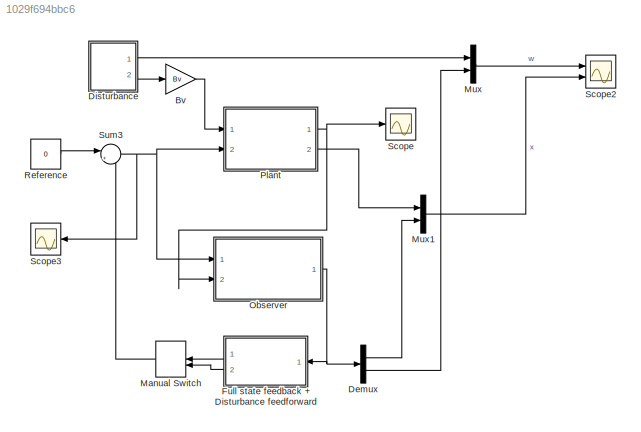
MODEL slx_1029f694bbc6
KIND model
CONFIG AbsTol = auto
CONFIG EnableMultiTasking = on
CONFIG FixedStep = 0.05
CONFIG MaxStep = auto
CONFIG MinStep = auto
CONFIG RelTol = 1e-3
CONFIG SampleTimeConstraint = Unconstrained
CONFIG Solver = ode4
CONFIG SolverName = ode4
CONFIG StartTime = 0.0
CONFIG StopTime = 50
BLOCK [Gain] Bv
  Gain = Bv
  Multiplication = Matrix(K*u) (u vector)
  OutDataTypeStr = Inherit: Inherit via internal rule
  ParamDataTypeStr = Inherit: Inherit via internal rule
  SaturateOnIntegerOverflow = off
BLOCK [Demux] Demux
  DisplayOption = bar
  Outputs = 2
  Ports = [1, 2]
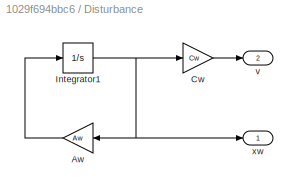
BLOCK [SubSystem] Disturbance
  Ports = [0, 2]
  RequestExecContextInheritance = off
  Variant = off
BLOCK [Gain] Disturbance/Aw
  Gain = Aw
  Multiplication = Matrix(K*u) (u vector)
  OutDataTypeStr = Inherit: Inherit via internal rule
  ParamDataTypeStr = Inherit: Inherit via internal rule
  SaturateOnIntegerOverflow = off
BLOCK [Gain] Disturbance/Cw
  Gain = Cw
  Multiplication = Matrix(K*u) (u vector)
  OutDataTypeStr = Inherit: Inherit via internal rule
  ParamDataTypeStr = Inherit: Inherit via internal rule
  SaturateOnIntegerOverflow = off
BLOCK [Integrator] Disturbance/Integrator1
  InitialCondition = w0
  Ports = [1, 1]
BLOCK [Outport] Disturbance/v
  IconDisplay = Port number
  Port = 2
BLOCK [Outport] Disturbance/xw
  IconDisplay = Port number
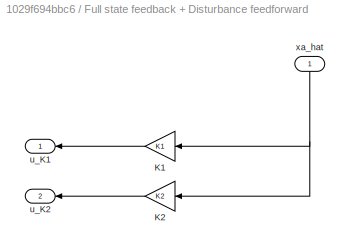
BLOCK [SubSystem] Full state feedback + Disturbance feedforward
  Ports = [1, 2]
  RequestExecContextInheritance = off
  Variant = off
BLOCK [Gain] Full state feedback + Disturbance feedforward/K1
  Gain = K1
  Multiplication = Matrix(K*u) (u vector)
  OutDataTypeStr = Inherit: Inherit via internal rule
  ParamDataTypeStr = Inherit: Inherit via internal rule
  SaturateOnIntegerOverflow = off
BLOCK [Gain] Full state feedback + Disturbance feedforward/K2
  Gain = K2
  Multiplication = Matrix(K*u) (u vector)
  OutDataTypeStr = Inherit: Inherit via internal rule
  ParamDataTypeStr = Inherit: Inherit via internal rule
  SaturateOnIntegerOverflow = off
BLOCK [Outport] Full state feedback + Disturbance feedforward/u_K1
  IconDisplay = Port number
BLOCK [Outport] Full state feedback + Disturbance feedforward/u_K2
  IconDisplay = Port number
  Port = 2
BLOCK [Inport] Full state feedback + Disturbance feedforward/xa_hat
  IconDisplay = Port number
BLOCK [ManualSwitch] Manual Switch
BLOCK [Mux] Mux
  DisplayOption = bar
  Inputs = 2
  Ports = [2, 1]
BLOCK [Mux] Mux1
  DisplayOption = bar
  Inputs = 2
  Ports = [2, 1]
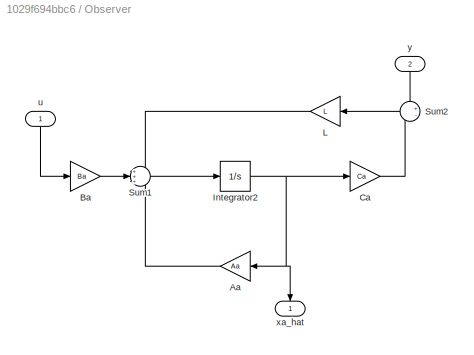
BLOCK [SubSystem] Observer
  Ports = [2, 1]
  RequestExecContextInheritance = off
  Variant = off
BLOCK [Gain] Observer/Aa
  Gain = Aa
  Multiplication = Matrix(K*u) (u vector)
  OutDataTypeStr = Inherit: Inherit via internal rule
  ParamDataTypeStr = Inherit: Inherit via internal rule
  SaturateOnIntegerOverflow = off
BLOCK [Gain] Observer/Ba
  Gain = Ba
  Multiplication = Matrix(K*u) (u vector)
  OutDataTypeStr = Inherit: Inherit via internal rule
  ParamDataTypeStr = Inherit: Inherit via internal rule
  SaturateOnIntegerOverflow = off
BLOCK [Gain] Observer/Ca
  Gain = Ca
  Multiplication = Matrix(K*u) (u vector)
  OutDataTypeStr = Inherit: Inherit via internal rule
  ParamDataTypeStr = Inherit: Inherit via internal rule
  SaturateOnIntegerOverflow = off
BLOCK [Integrator] Observer/Integrator2
  InitialCondition = xhat0
  Ports = [1, 1]
BLOCK [Gain] Observer/L
  Gain = L
  Multiplication = Matrix(K*u) (u vector)
  OutDataTypeStr = Inherit: Inherit via internal rule
  ParamDataTypeStr = Inherit: Inherit via internal rule
  SaturateOnIntegerOverflow = off
BLOCK [Sum] Observer/Sum1
  IconShape = round
  InputSameDT = off
  Inputs = +++
  OutDataTypeStr = Inherit: Inherit via internal rule
  Ports = [3, 1]
  SaturateOnIntegerOverflow = off
BLOCK [Sum] Observer/Sum2
  IconShape = round
  InputSameDT = off
  Inputs = +-
  OutDataTypeStr = Inherit: Inherit via internal rule
  Ports = [2, 1]
  SaturateOnIntegerOverflow = off
BLOCK [Inport] Observer/u
  IconDisplay = Port number
BLOCK [Outport] Observer/xa_hat
  IconDisplay = Port number
BLOCK [Inport] Observer/y
  IconDisplay = Port number
  Port = 2
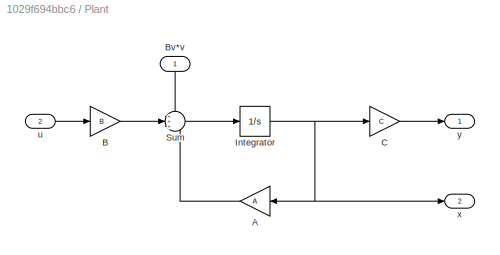
BLOCK [SubSystem] Plant
  Ports = [2, 2]
  RequestExecContextInheritance = off
  Variant = off
BLOCK [Gain] Plant/A
  Gain = A
  Multiplication = Matrix(K*u) (u vector)
  OutDataTypeStr = Inherit: Inherit via internal rule
  ParamDataTypeStr = Inherit: Inherit via internal rule
  SaturateOnIntegerOverflow = off
BLOCK [Gain] Plant/B
  Gain = B
  Multiplication = Matrix(K*u) (u vector)
  OutDataTypeStr = Inherit: Inherit via internal rule
  ParamDataTypeStr = Inherit: Inherit via internal rule
  SaturateOnIntegerOverflow = off
BLOCK [Inport] Plant/Bv*v
  IconDisplay = Port number
BLOCK [Gain] Plant/C
  Gain = C
  Multiplication = Matrix(K*u) (u vector)
  OutDataTypeStr = Inherit: Inherit via internal rule
  ParamDataTypeStr = Inherit: Inherit via internal rule
  SaturateOnIntegerOverflow = off
BLOCK [Integrator] Plant/Integrator
  InitialCondition = x0
  Ports = [1, 1]
BLOCK [Sum] Plant/Sum
  IconShape = round
  InputSameDT = off
  Inputs = +++
  OutDataTypeStr = Inherit: Inherit via internal rule
  Ports = [3, 1]
  SaturateOnIntegerOverflow = off
BLOCK [Inport] Plant/u
  IconDisplay = Port number
  Port = 2
BLOCK [Outport] Plant/x
  IconDisplay = Port number
  Port = 2
BLOCK [Outport] Plant/y
  IconDisplay = Port number
BLOCK [Constant] Reference
  Value = 0
BLOCK [Scope] Scope
  NumInputPorts = 1
  Ports = [1]
  ScopeSpecificationString = Simulink.scopes.TimeScopeBlockCfg('CurrentConfiguration', extmgr.ConfigurationSet(extmgr.Configuration('Core','General UI',true),extmgr.Configuration('Core','Source UI',true),extmgr.Configuration('Sources','WiredSimulink',true,'DataLoggingSaveFormat','StructureWithTime','DataLoggingDecimation','1','DataLoggingDecimateData',true),extmgr.Configuration('Visuals','Time Domain',true,'SerializedDisplays...<+1607ch>
BLOCK [Scope] Scope2
  NumInputPorts = 2
  Ports = [2]
  ScopeSpecificationString = Simulink.scopes.TimeScopeBlockCfg('CurrentConfiguration', extmgr.ConfigurationSet(extmgr.Configuration('Core','General UI',true,'FigureColor',[0.501960784313725 0.501960784313725 0.501960784313725]),extmgr.Configuration('Core','Source UI',true),extmgr.Configuration('Sources','WiredSimulink',true,'DataLoggingVariableName','ScopeData2','DataLoggingSaveFormat','StructureWithTime','DataLoggingDecimati...<+3851ch>
BLOCK [Scope] Scope3
  NumInputPorts = 1
  Ports = [1]
  ScopeSpecificationString = Simulink.scopes.TimeScopeBlockCfg('CurrentConfiguration', extmgr.ConfigurationSet(extmgr.Configuration('Core','General UI',true),extmgr.Configuration('Core','Source UI',true),extmgr.Configuration('Sources','WiredSimulink',true,'DataLoggingVariableName','ScopeData3','DataLoggingSaveFormat','StructureWithTime','DataLoggingDecimation','1','DataLoggingDecimateData',true),extmgr.Configuration('Visuals'...<+1715ch>
BLOCK [Sum] Sum3
  IconShape = round
  InputSameDT = off
  Inputs = |+-
  OutDataTypeStr = Inherit: Inherit via internal rule
  Ports = [2, 1]
  SaturateOnIntegerOverflow = off
LINE Bv:1 -> Plant:1
LINE Demux:1 -> Mux1:2
LINE Demux:2 -> Mux:2
LINE Disturbance/Aw:1 -> Disturbance/Integrator1:1
LINE Disturbance/Cw:1 -> Disturbance/v:1
NET Disturbance/Integrator1:1 -> Disturbance/Aw:1, Disturbance/Cw:1, Disturbance/xw:1
LINE Disturbance:1 -> Mux:1
LINE Disturbance:2 -> Bv:1
LINE Full state feedback + Disturbance feedforward/K1:1 -> Full state feedback + Disturbance feedforward/u_K1:1
LINE Full state feedback + Disturbance feedforward/K2:1 -> Full state feedback + Disturbance feedforward/u_K2:1
NET Full state feedback + Disturbance feedforward/xa_hat:1 -> Full state feedback + Disturbance feedforward/K1:1, Full state feedback + Disturbance feedforward/K2:1
LINE Full state feedback + Disturbance feedforward:1 -> Manual Switch:1
LINE Full state feedback + Disturbance feedforward:2 -> Manual Switch:2
LINE Manual Switch:1 -> Sum3:2
LINE Mux1:1 -> Scope2:2
LINE Mux:1 -> Scope2:1
LINE Observer/Aa:1 -> Observer/Sum1:3
LINE Observer/Ba:1 -> Observer/Sum1:2
LINE Observer/Ca:1 -> Observer/Sum2:2
NET Observer/Integrator2:1 -> Observer/Aa:1, Observer/Ca:1, Observer/xa_hat:1
LINE Observer/L:1 -> Observer/Sum1:1
LINE Observer/Sum1:1 -> Observer/Integrator2:1
LINE Observer/Sum2:1 -> Observer/L:1
LINE Observer/u:1 -> Observer/Ba:1
LINE Observer/y:1 -> Observer/Sum2:1
NET Observer:1 -> Demux:1, Full state feedback + Disturbance feedforward:1
LINE Plant/A:1 -> Plant/Sum:3
LINE Plant/B:1 -> Plant/Sum:2
LINE Plant/Bv*v:1 -> Plant/Sum:1
LINE Plant/C:1 -> Plant/y:1
NET Plant/Integrator:1 -> Plant/A:1, Plant/C:1, Plant/x:1
LINE Plant/Sum:1 -> Plant/Integrator:1
LINE Plant/u:1 -> Plant/B:1
NET Plant:1 -> Observer:2, Scope:1
LINE Plant:2 -> Mux1:1
LINE Reference:1 -> Sum3:1
NET Sum3:1 -> Observer:1, Plant:2, Scope3:1
note: NET lines group one-source signal fan-out (src -> all destinations, sorted); 1:1 wires keep LINE
